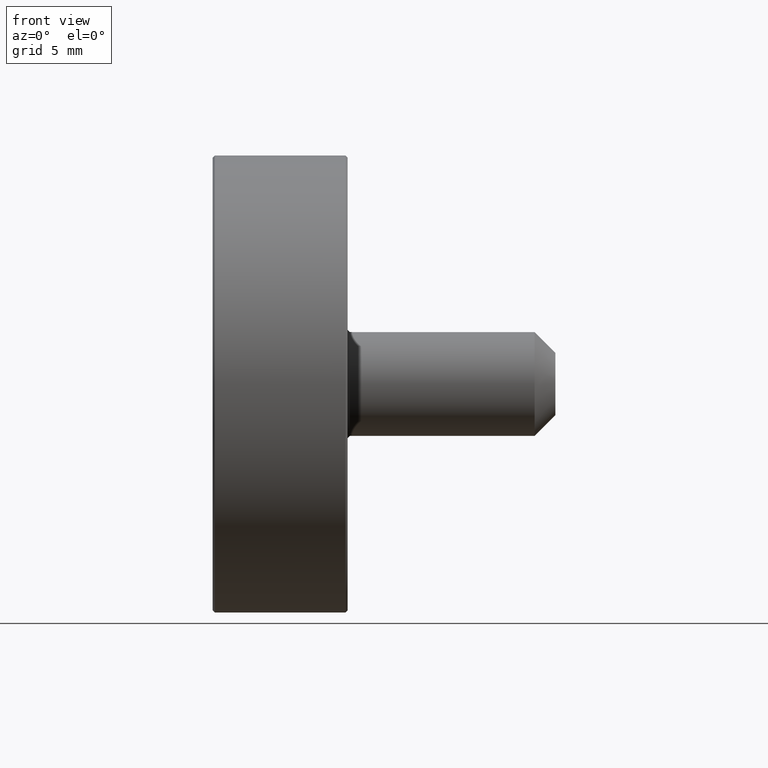
[diagram: clean part render]
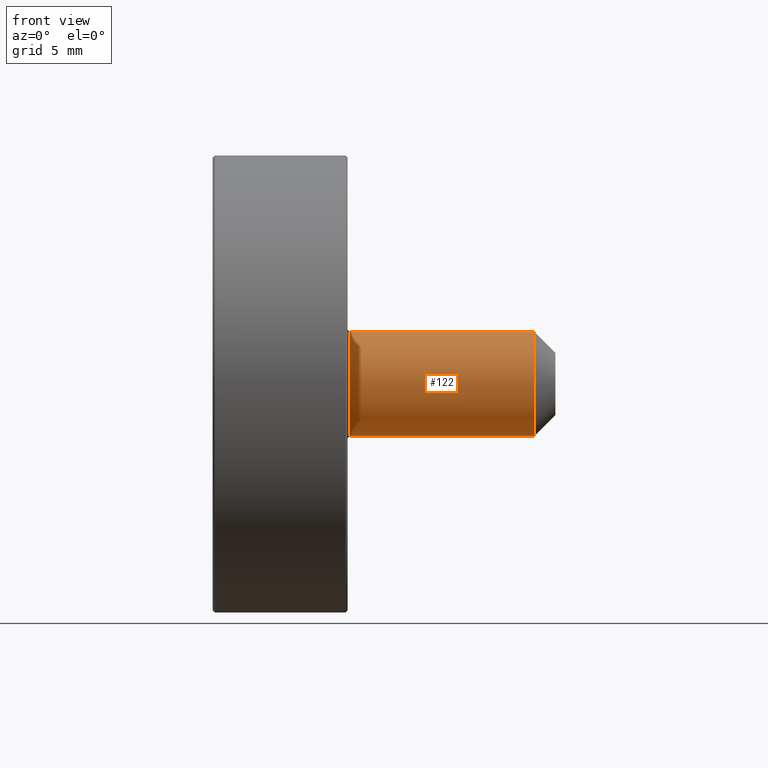
[diagram: same view with one face highlighted and labeled with its STEP entity id]
A machine part, front view. The second image highlights one B-rep face of the part: STEP entity #122.
In plain terms, the highlighted cylindrical surface (bore or boss wall) has radius 2.5 mm, axis along (1, 0, 0).
Its self-contained STEP definition (entity closure, byte-faithful):
#20=CYLINDRICAL_SURFACE('',#142,2.5);
#28=FACE_BOUND('',#55,.T.);
#37=FACE_OUTER_BOUND('',#54,.T.);
#54=EDGE_LOOP('',(#104));
#55=EDGE_LOOP('',(#105));
#68=CIRCLE('',#141,2.5);
#69=CIRCLE('',#143,2.5);
#78=VERTEX_POINT('',#213);
#79=VERTEX_POINT('',#216);
#88=EDGE_CURVE('',#78,#78,#68,.T.);
#89=EDGE_CURVE('',#79,#79,#69,.T.);
#104=ORIENTED_EDGE('',*,*,#89,.F.);
#105=ORIENTED_EDGE('',*,*,#88,.F.);
#122=ADVANCED_FACE('',(#37,#28),#20,.T.);
#141=AXIS2_PLACEMENT_3D('',#214,#176,#177);
#142=AXIS2_PLACEMENT_3D('',#215,#178,#179);
#143=AXIS2_PLACEMENT_3D('',#217,#180,#181);
#176=DIRECTION('center_axis',(-1.,0.,0.));
#177=DIRECTION('ref_axis',(0.,0.,1.));
#178=DIRECTION('center_axis',(1.,0.,0.));
#179=DIRECTION('ref_axis',(0.,0.,1.));
#180=DIRECTION('center_axis',(1.,0.,0.));
#181=DIRECTION('ref_axis',(0.,0.,1.));
#213=CARTESIAN_POINT('',(6.6,-3.06161699786838E-16,-2.5));
#214=CARTESIAN_POINT('Origin',(6.6,0.,0.));
#215=CARTESIAN_POINT('Origin',(6.5,0.,0.));
#216=CARTESIAN_POINT('',(15.5,3.06161699786838E-16,-2.5));
#217=CARTESIAN_POINT('Origin',(15.5,0.,0.));